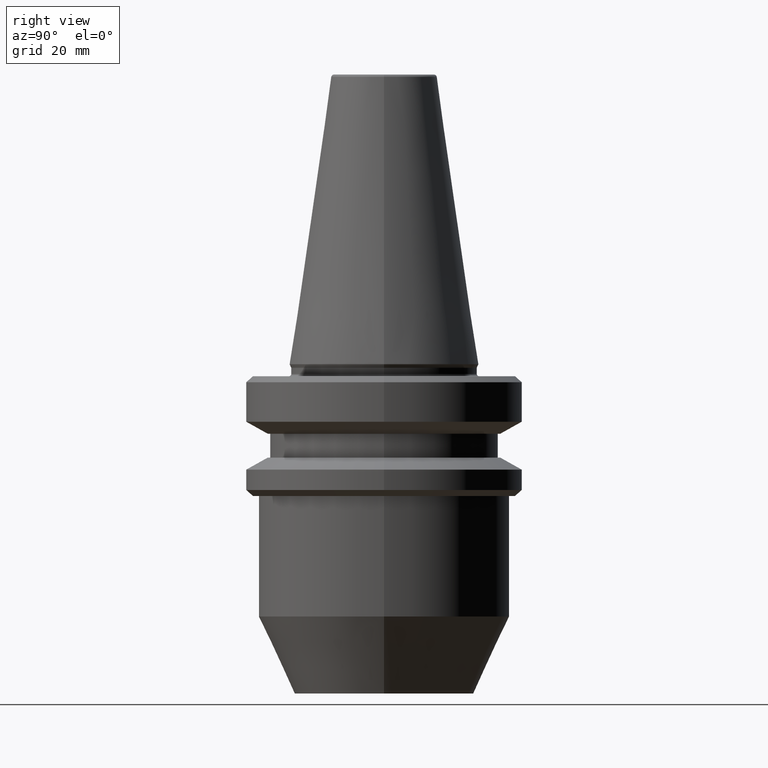
[diagram: clean part render]
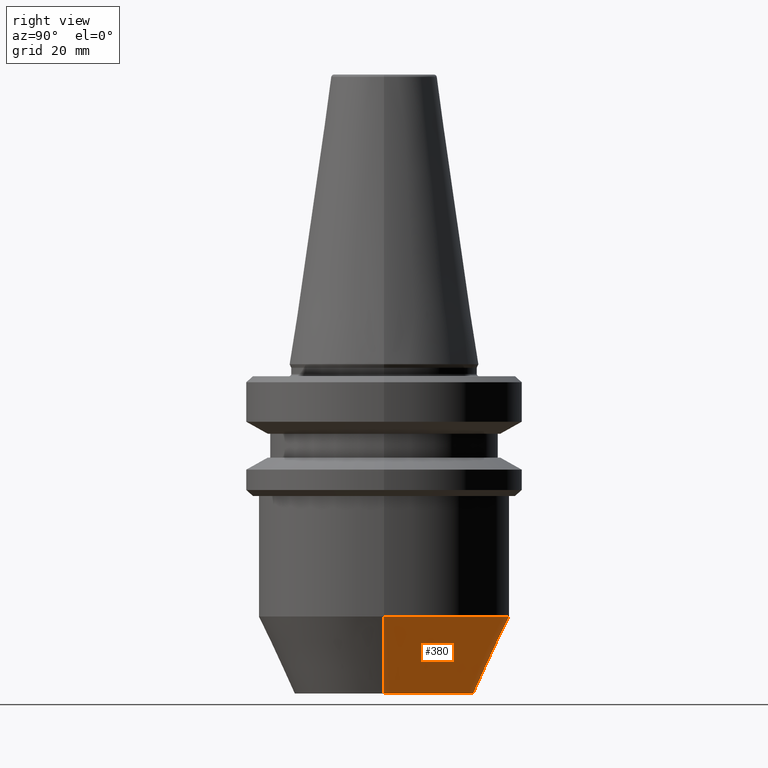
[diagram: same view with one face highlighted and labeled with its STEP entity id]
A machine part, right view. The second image highlights one B-rep face of the part: STEP entity #380.
In plain terms, the highlighted conical surface has half-angle 25 deg.
Its self-contained STEP definition (entity closure, byte-faithful):
#16 = CARTESIAN_POINT ( 'NONE',  ( -15.00000000000023400, 1.836970198721058400E-015, -54.99999999999961600 ) ) ;
#40 = CARTESIAN_POINT ( 'NONE',  ( 0.0000000000000000000, 0.0000000000000000000, -42.13295847694266200 ) ) ;
#67 = AXIS2_PLACEMENT_3D ( 'NONE', #40, #659, #949 ) ;
#108 = CARTESIAN_POINT ( 'NONE',  ( -15.00000000000023400, 2.204364238465251200E-015, -54.99999999999961600 ) ) ;
#116 = ORIENTED_EDGE ( 'NONE', *, *, #192, .F. ) ;
#119 = DIRECTION ( 'NONE',  ( 1.000000000000000000, 0.0000000000000000000, 0.0000000000000000000 ) ) ;
#173 = CARTESIAN_POINT ( 'NONE',  ( 0.0000000000000000000, 0.0000000000000000000, -54.99999999999961600 ) ) ;
#192 = EDGE_CURVE ( 'NONE', #357, #683, #578, .T. ) ;
#193 = DIRECTION ( 'NONE',  ( -0.4226182617406976100, 5.175581015019636600E-017, 0.9063077870366508200 ) ) ;
#197 = ORIENTED_EDGE ( 'NONE', *, *, #643, .T. ) ;
#198 = ORIENTED_EDGE ( 'NONE', *, *, #317, .F. ) ;
#229 = CIRCLE ( 'NONE', #304, 15.00000000000023400 ) ;
#241 = CARTESIAN_POINT ( 'NONE',  ( 15.00000000000023400, 0.0000000000000000000, -54.99999999999961600 ) ) ;
#245 = EDGE_LOOP ( 'NONE', ( #727, #197, #198, #116 ) ) ;
#265 = CONICAL_SURFACE ( 'NONE', #383, 15.00000000000023400, 0.4363323129985803800 ) ;
#304 = AXIS2_PLACEMENT_3D ( 'NONE', #173, #609, #119 ) ;
#316 = FACE_OUTER_BOUND ( 'NONE', #245, .T. ) ;
#317 = EDGE_CURVE ( 'NONE', #683, #544, #832, .T. ) ;
#357 = VERTEX_POINT ( 'NONE', #548 ) ;
#380 = ADVANCED_FACE ( 'NONE', ( #316 ), #265, .T. ) ;
#383 = AXIS2_PLACEMENT_3D ( 'NONE', #389, #868, #814 ) ;
#389 = CARTESIAN_POINT ( 'NONE',  ( 0.0000000000000000000, 0.0000000000000000000, -54.99999999999961600 ) ) ;
#397 = VECTOR ( 'NONE', #193, 1000.000000000000000 ) ;
#399 = CARTESIAN_POINT ( 'NONE',  ( -21.00000000000001800, 2.571758278209443600E-015, -42.13295847694266200 ) ) ;
#474 = VECTOR ( 'NONE', #682, 1000.000000000000000 ) ;
#531 = VERTEX_POINT ( 'NONE', #108 ) ;
#544 = VERTEX_POINT ( 'NONE', #399 ) ;
#548 = CARTESIAN_POINT ( 'NONE',  ( 15.00000000000023400, 0.0000000000000000000, -54.99999999999961600 ) ) ;
#578 = LINE ( 'NONE', #241, #474 ) ;
#591 = LINE ( 'NONE', #16, #397 ) ;
#606 = CARTESIAN_POINT ( 'NONE',  ( 21.00000000000001800, 0.0000000000000000000, -42.13295847694266200 ) ) ;
#609 = DIRECTION ( 'NONE',  ( -0.0000000000000000000, -0.0000000000000000000, 1.000000000000000000 ) ) ;
#643 = EDGE_CURVE ( 'NONE', #531, #544, #591, .T. ) ;
#659 = DIRECTION ( 'NONE',  ( -0.0000000000000000000, -0.0000000000000000000, 1.000000000000000000 ) ) ;
#663 = EDGE_CURVE ( 'NONE', #357, #531, #229, .T. ) ;
#682 = DIRECTION ( 'NONE',  ( 0.4226182617406976100, 0.0000000000000000000, 0.9063077870366508200 ) ) ;
#683 = VERTEX_POINT ( 'NONE', #606 ) ;
#727 = ORIENTED_EDGE ( 'NONE', *, *, #663, .T. ) ;
#814 = DIRECTION ( 'NONE',  ( 1.000000000000000000, 0.0000000000000000000, 0.0000000000000000000 ) ) ;
#832 = CIRCLE ( 'NONE', #67, 21.00000000000001800 ) ;
#868 = DIRECTION ( 'NONE',  ( -0.0000000000000000000, -0.0000000000000000000, 1.000000000000000000 ) ) ;
#949 = DIRECTION ( 'NONE',  ( 1.000000000000000000, 0.0000000000000000000, 0.0000000000000000000 ) ) ;